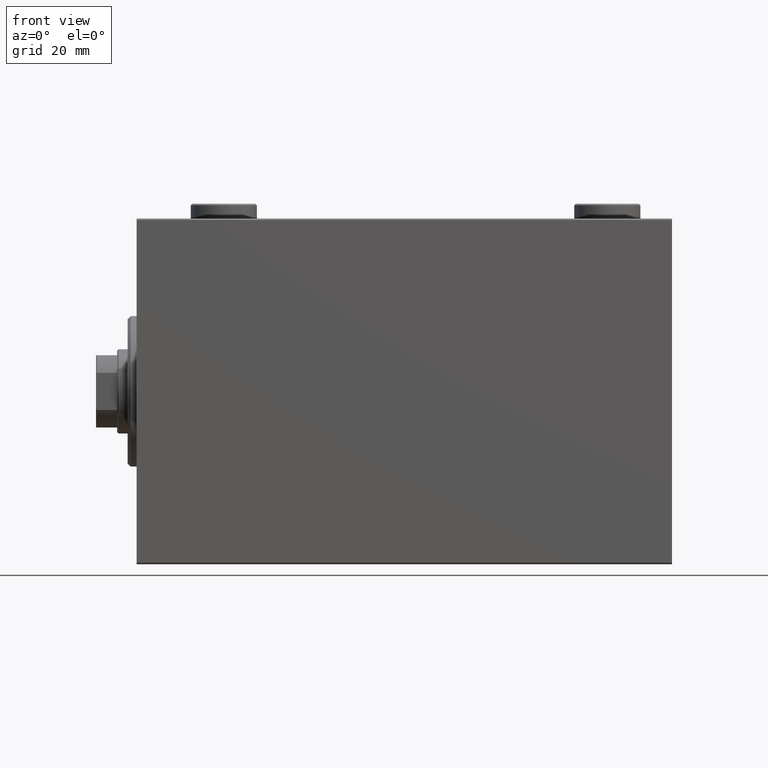
[diagram: clean part render]
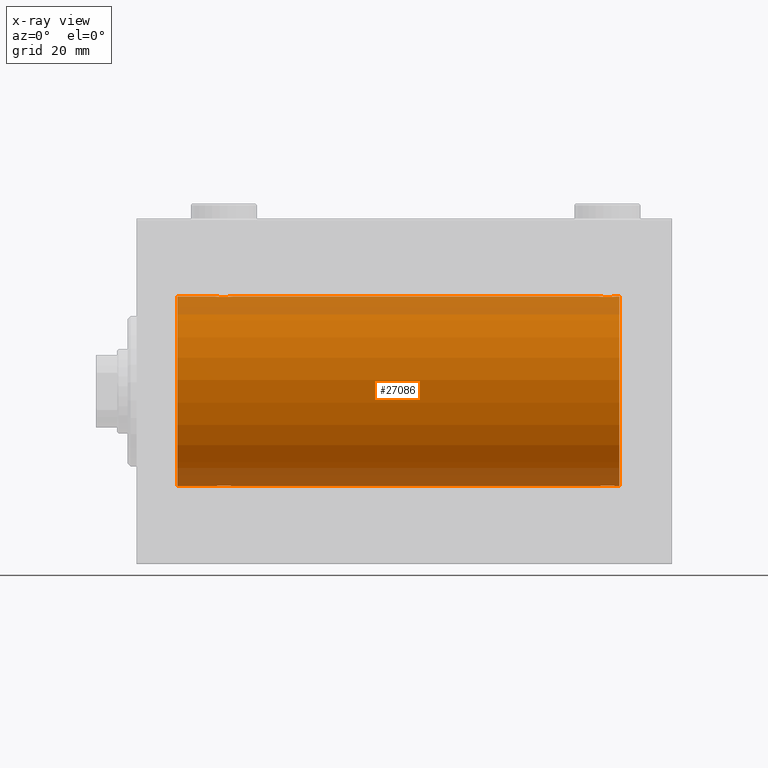
[diagram: x-ray — body ghosted, one internal face saturated and labeled with its STEP entity id]
A machine part, front view, then the same camera in x-ray: the body is ghosted and one INTERNAL B-rep face — a face not visible from any outside direction — is saturated and labeled: STEP entity #27086.
In plain terms, the highlighted cylindrical surface (partial cylindrical patch) has radius 31.5 mm, axis along (-1, -0, -0).
Its self-contained STEP definition (entity closure, byte-faithful):
#402 = CARTESIAN_POINT ( 'NONE',  ( 26.00000000000000355, -4.219962720039639025E-15, -31.50000000000000000 ) ) ;
#1090 = ORIENTED_EDGE ( 'NONE', *, *, #42669, .T. ) ;
#1121 = CARTESIAN_POINT ( 'NONE',  ( 159.1952964235900936, -1.331741824817656683, 31.47235367475393630 ) ) ;
#1234 = CARTESIAN_POINT ( 'NONE',  ( 26.00000000000000355, -2.117263226567934635E-23, 31.50000000000000000 ) ) ;
#1292 = CARTESIAN_POINT ( 'NONE',  ( 160.5000000000000000, 3.857637417314162689E-15, -31.50000000000000000 ) ) ;
#1351 = CARTESIAN_POINT ( 'NONE',  ( 156.1046588899990581, -2.980257240990053624, 31.35872356503797320 ) ) ;
#1556 = CARTESIAN_POINT ( 'NONE',  ( 154.1175312773337396, -1.833765390051043553, -31.44700610425689291 ) ) ;
#1777 = CARTESIAN_POINT ( 'NONE',  ( 157.8323995809917051, -2.695056442718533951, -31.38458855656186230 ) ) ;
#2041 = CARTESIAN_POINT ( 'NONE',  ( 159.4202066295003988, -0.7905881588836107809, 31.49214662150069088 ) ) ;
#2074 = CARTESIAN_POINT ( 'NONE',  ( 31.98101509391517538, -0.3904857149112004322, -31.49817436802766224 ) ) ;
#2308 = CARTESIAN_POINT ( 'NONE',  ( 28.60885452660059869, -2.980809450819697393, -31.35867074198615256 ) ) ;
#2311 = EDGE_LOOP ( 'NONE', ( #14468, #28234, #1090, #2704, #30537, #4821, #25233, #13366, #40650, #8980, #15616, #23655 ) ) ;
#2629 = DIRECTION ( 'NONE',  ( -1.000000000000000000, -0.000000000000000000, -0.000000000000000000 ) ) ;
#2666 = AXIS2_PLACEMENT_3D ( 'NONE', #33991, #9959, #34667 ) ;
#2704 = ORIENTED_EDGE ( 'NONE', *, *, #35328, .T. ) ;
#2879 = CARTESIAN_POINT ( 'NONE',  ( 26.61498557723073333, -1.830470878313877892, 31.44719957596828053 ) ) ;
#3112 = CARTESIAN_POINT ( 'NONE',  ( 28.79953541025904684, -2.999845816735297266, 31.35683219171744796 ) ) ;
#4592 = VERTEX_POINT ( 'NONE', #38613 ) ;
#4616 = CARTESIAN_POINT ( 'NONE',  ( 154.9954371499300407, -2.602826974226394086, 31.39247100434485560 ) ) ;
#4809 = B_SPLINE_CURVE_WITH_KNOTS ( 'NONE', 3,
 ( #29569, #33733, #2074, #12724, #43696, #40675, #16187, #27015, #12031, #44142, #5332, #5791, #15948, #19870, #41132, #29796, #33965, #40214, #2308, #36969, #30259, #12944, #22643, #36737, #5103, #16424, #44383, #43914, #26791, #33500, #30024, #30489 ),
 .UNSPECIFIED., .F., .F.,
 ( 4, 2, 2, 2, 2, 2, 2, 2, 2, 2, 2, 2, 2, 2, 2, 4 ),
 ( 0.009384682587134662163, 0.009971088165454068328, 0.01055749374377347449, 0.01114389932209287892, 0.01173030490041228509, 0.01231671047873168431, 0.01290311605705108181, 0.01348952163537047930, 0.01407592721368987852, 0.01466233279200927775, 0.01524873837032867524, 0.01583514394864807273, 0.01642154952696747369, 0.01700795510528686771, 0.01759436068360626521, 0.01876717184024506366 ),
 .UNSPECIFIED. ) ;
#4821 = ORIENTED_EDGE ( 'NONE', *, *, #27461, .T. ) ;
#4883 = VERTEX_POINT ( 'NONE', #33718 ) ;
#5103 = CARTESIAN_POINT ( 'NONE',  ( 27.01856537126959168, -2.261012035264780451, -31.41905495618428645 ) ) ;
#5271 = CARTESIAN_POINT ( 'NONE',  ( 158.3304369148700630, -2.384935707362425550, -31.40977595730572247 ) ) ;
#5303 = CARTESIAN_POINT ( 'NONE',  ( 159.5000000000000000, 4.699731104275013306E-15, 31.50000000000000000 ) ) ;
#5332 = CARTESIAN_POINT ( 'NONE',  ( 30.83043691487003102, -2.384935707362432211, -31.40977595730573668 ) ) ;
#5525 = CARTESIAN_POINT ( 'NONE',  ( 157.2746909443437175, -2.904836261170101519, 31.36579955910872286 ) ) ;
#5667 = CARTESIAN_POINT ( 'NONE',  ( 26.15339536257501507, -0.9669616078781987367, 31.48567319468626735 ) ) ;
#5725 = CARTESIAN_POINT ( 'NONE',  ( 153.8980785956084674, -1.506272792558325468, -31.46439306106695710 ) ) ;
#5791 = CARTESIAN_POINT ( 'NONE',  ( 30.50456285006998414, -2.602826974226390977, -31.39247100434485560 ) ) ;
#6135 = CARTESIAN_POINT ( 'NONE',  ( 29.96515729810641204, -2.847307171789037028, 31.37114183851420890 ) ) ;
#6151 = LINE ( 'NONE', #21380, #35386 ) ;
#6358 = CARTESIAN_POINT ( 'NONE',  ( 27.66760041900836953, -2.695056442718533507, 31.38458855656185875 ) ) ;
#6383 = DIRECTION ( 'NONE',  ( 0.000000000000000000, 0.000000000000000000, 1.000000000000000000 ) ) ;
#6583 = CARTESIAN_POINT ( 'NONE',  ( 30.32865414687508832, -2.696917666262907520, 31.38442820068731365 ) ) ;
#6652 = CARTESIAN_POINT ( 'NONE',  ( 32.00000000000000000, -3.906065418435112189E-16, 31.50000000000000000 ) ) ;
#6915 = B_SPLINE_CURVE_WITH_KNOTS ( 'NONE', 3,
 ( #14978, #29044, #45564, #13902, #38622, #35145, #43173, #25585, #44077, #40608, #5271, #18884, #1777, #22811, #15427, #9190, #8972, #19574, #44314, #36439, #15888, #43634, #12421, #12190, #29503, #12660, #1556, #5725, #26258, #26494, #26731, #33442 ),
 .UNSPECIFIED., .F., .F.,
 ( 4, 2, 2, 2, 2, 2, 2, 2, 2, 2, 2, 2, 2, 2, 2, 4 ),
 ( 0.009384682587134632673, 0.009971088165454031899, 0.01055749374377343112, 0.01114389932209283035, 0.01173030490041223131, 0.01231671047873163054, 0.01290311605705102976, 0.01348952163537043072, 0.01407592721368982822, 0.01466233279200922918, 0.01524873837032862840, 0.01583514394864802763, 0.01642154952696742512, 0.01700795510528682608, 0.01759436068360622357, 0.01876717184024502549 ),
 .UNSPECIFIED. ) ;
#7403 = AXIS2_PLACEMENT_3D ( 'NONE', #17182, #10487, #24553 ) ;
#8095 = CARTESIAN_POINT ( 'NONE',  ( 154.2390453754387067, -1.981494824113333442, 31.43792153503156683 ) ) ;
#8229 = EDGE_CURVE ( 'NONE', #4883, #30387, #21154, .T. ) ;
#8400 = VERTEX_POINT ( 'NONE', #17762 ) ;
#8534 = CARTESIAN_POINT ( 'NONE',  ( 155.1676004190083233, -2.695056442718522849, 31.38458855656185165 ) ) ;
#8972 = CARTESIAN_POINT ( 'NONE',  ( 156.7004645897410455, -2.999845816735304815, -31.35683219171744796 ) ) ;
#8980 = ORIENTED_EDGE ( 'NONE', *, *, #9841, .F. ) ;
#9001 = CARTESIAN_POINT ( 'NONE',  ( 154.6695630851299654, -2.384935707362434876, 31.40977595730572958 ) ) ;
#9138 = CARTESIAN_POINT ( 'NONE',  ( 28.03055544341478722, -2.845838211243333138, 31.37127560316186603 ) ) ;
#9157 = CARTESIAN_POINT ( 'NONE',  ( 160.5000000000000000, 3.857637417314162689E-15, -31.50000000000000000 ) ) ;
#9190 = CARTESIAN_POINT ( 'NONE',  ( 156.8953411100009703, -2.980257240990060730, -31.35872356503797320 ) ) ;
#9362 = CARTESIAN_POINT ( 'NONE',  ( 31.60192140439154684, -1.506272792558323470, 31.46439306106697131 ) ) ;
#9841 = EDGE_CURVE ( 'NONE', #4883, #39612, #44931, .T. ) ;
#9959 = DIRECTION ( 'NONE',  ( -1.000000000000000000, -0.000000000000000000, -0.000000000000000000 ) ) ;
#10405 = VERTEX_POINT ( 'NONE', #402 ) ;
#10487 = DIRECTION ( 'NONE',  ( -1.000000000000000000, 0.000000000000000000, 0.000000000000000000 ) ) ;
#10883 = VERTEX_POINT ( 'NONE', #41374 ) ;
#11571 = VERTEX_POINT ( 'NONE', #9157 ) ;
#12028 = VERTEX_POINT ( 'NONE', #18978 ) ;
#12031 = CARTESIAN_POINT ( 'NONE',  ( 31.26095462456130747, -1.981494824113323894, -31.43792153503156683 ) ) ;
#12088 = DIRECTION ( 'NONE',  ( -1.000000000000000000, -0.000000000000000000, -0.000000000000000000 ) ) ;
#12190 = CARTESIAN_POINT ( 'NONE',  ( 154.6729577462973566, -2.387531469909784931, -31.40957782495775419 ) ) ;
#12222 = CARTESIAN_POINT ( 'NONE',  ( 157.8286541468751238, -2.696917666262893309, 31.38442820068731365 ) ) ;
#12421 = CARTESIAN_POINT ( 'NONE',  ( 154.9990184370385577, -2.604888532024801417, -31.39229907792057972 ) ) ;
#12455 = CARTESIAN_POINT ( 'NONE',  ( 154.1149855772306978, -1.830470878313871008, 31.44719957596828763 ) ) ;
#12605 = CARTESIAN_POINT ( 'NONE',  ( 27.16956308512997964, -2.384935707362437096, 31.40977595730572958 ) ) ;
#12660 = CARTESIAN_POINT ( 'NONE',  ( 154.2417549809673574, -1.984587626072083388, -31.43772577203671048 ) ) ;
#12724 = CARTESIAN_POINT ( 'NONE',  ( 31.90419450738055218, -0.7775502215293830233, -31.49099686045559565 ) ) ;
#12944 = CARTESIAN_POINT ( 'NONE',  ( 27.67134585312493655, -2.696917666262905300, -31.38442820068732786 ) ) ;
#13029 = VERTEX_POINT ( 'NONE', #32592 ) ;
#13055 = CARTESIAN_POINT ( 'NONE',  ( 26.00000000000001066, -0.1958045626907463088, 31.50000000000000711 ) ) ;
#13366 = ORIENTED_EDGE ( 'NONE', *, *, #29364, .F. ) ;
#13515 = CARTESIAN_POINT ( 'NONE',  ( 26.39582218725271900, -1.502389880413001144, 31.46458023642405166 ) ) ;
#13902 = CARTESIAN_POINT ( 'NONE',  ( 159.4041945073805948, -0.7775502215293820241, -31.49099686045560276 ) ) ;
#14116 = EDGE_CURVE ( 'NONE', #41057, #10405, #4809, .T. ) ;
#14468 = ORIENTED_EDGE ( 'NONE', *, *, #24061, .F. ) ;
#14643 = CARTESIAN_POINT ( 'NONE',  ( 160.5000000000000000, 0.000000000000000000, 31.50000000000000000 ) ) ;
#14957 = LINE ( 'NONE', #1292, #38826 ) ;
#14978 = CARTESIAN_POINT ( 'NONE',  ( 159.5000000000000284, 3.857637396132714903E-15, -31.50000000000000000 ) ) ;
#15399 = DIRECTION ( 'NONE',  ( -1.000000000000000000, -0.000000000000000000, -0.000000000000000000 ) ) ;
#15427 = CARTESIAN_POINT ( 'NONE',  ( 157.2788191264232580, -2.903733559410687004, -31.36590199989303684 ) ) ;
#15616 = ORIENTED_EDGE ( 'NONE', *, *, #8229, .T. ) ;
#15888 = CARTESIAN_POINT ( 'NONE',  ( 155.5348427018936377, -2.847307171789046354, -31.37114183851420179 ) ) ;
#15948 = CARTESIAN_POINT ( 'NONE',  ( 30.33239958099164824, -2.695056442718528178, -31.38458855656186230 ) ) ;
#16153 = CARTESIAN_POINT ( 'NONE',  ( 158.8824687226662888, -1.833765390051030009, 31.44700610425690712 ) ) ;
#16187 = CARTESIAN_POINT ( 'NONE',  ( 31.60417781274729165, -1.502389880412994261, -31.46458023642406587 ) ) ;
#16307 = CARTESIAN_POINT ( 'NONE',  ( 31.38246872266631371, -1.833765390051040223, 31.44700610425690712 ) ) ;
#16424 = CARTESIAN_POINT ( 'NONE',  ( 26.74175498096733961, -1.984587626072072952, -31.43772577203672469 ) ) ;
#16463 = EDGE_CURVE ( 'NONE', #10883, #30387, #38673, .T. ) ;
#16533 = CARTESIAN_POINT ( 'NONE',  ( 32.00000000000000000, -3.906065418435112189E-16, 31.50000000000000000 ) ) ;
#16756 = CARTESIAN_POINT ( 'NONE',  ( 28.60465888999904749, -2.980257240990054513, 31.35872356503797320 ) ) ;
#17182 = CARTESIAN_POINT ( 'NONE',  ( 13.50000000000001243, 0.000000000000000000, 0.000000000000000000 ) ) ;
#17762 = CARTESIAN_POINT ( 'NONE',  ( 13.50000000000001243, 0.000000000000000000, 31.50000000000000000 ) ) ;
#18694 = CARTESIAN_POINT ( 'NONE',  ( 153.8958221872527190, -1.502389880412993595, 31.46458023642405877 ) ) ;
#18865 = VERTEX_POINT ( 'NONE', #1234 ) ;
#18884 = CARTESIAN_POINT ( 'NONE',  ( 158.0045628500700445, -2.602826974226389645, -31.39247100434486271 ) ) ;
#18978 = CARTESIAN_POINT ( 'NONE',  ( 159.5000000000000284, 3.857637396132714903E-15, -31.50000000000000000 ) ) ;
#19155 = CARTESIAN_POINT ( 'NONE',  ( 156.2995354102590682, -2.999845816735293713, 31.35683219171744796 ) ) ;
#19574 = CARTESIAN_POINT ( 'NONE',  ( 156.3041770556056065, -3.000152387858495029, -31.35680286115499626 ) ) ;
#19606 = CARTESIAN_POINT ( 'NONE',  ( 153.5000000000000284, -0.1958045626907475856, 31.50000000000000000 ) ) ;
#19754 = CARTESIAN_POINT ( 'NONE',  ( 30.82704225370267892, -2.387531469909770276, 31.40957782495776129 ) ) ;
#19870 = CARTESIAN_POINT ( 'NONE',  ( 29.96944455658522699, -2.845838211243328697, -31.37127560316187314 ) ) ;
#21154 = B_SPLINE_CURVE_WITH_KNOTS ( 'NONE', 3,
 ( #44109, #19606, #23069, #36703, #39731, #37159, #18694, #12455, #8095, #33007, #9001, #4616, #8534, #22166, #40640, #1351, #19155, #32782, #22611, #5525, #22386, #12222, #26525, #36471, #33698, #30228, #16153, #36254, #1121, #2041, #29990, #5303 ),
 .UNSPECIFIED., .F., .F.,
 ( 4, 2, 2, 2, 2, 2, 2, 2, 2, 2, 2, 2, 2, 2, 2, 4 ),
 ( 0.009384682587134643081, 0.009971088165454042307, 0.01055749374377344327, 0.01114389932209284423, 0.01173030490041224345, 0.01231671047873164268, 0.01290311605705104364, 0.01348952163537044460, 0.01407592721368984383, 0.01466233279200924305, 0.01524873837032864402, 0.01583514394864804498, 0.01642154952696744594, 0.01700795510528684690, 0.01759436068360624439, 0.01876717184024504284 ),
 .UNSPECIFIED. ) ;
#21380 = CARTESIAN_POINT ( 'NONE',  ( 160.5000000000000000, 3.857637417314162689E-15, -31.50000000000000000 ) ) ;
#22166 = CARTESIAN_POINT ( 'NONE',  ( 155.5305554434147837, -2.845838211243326032, 31.37127560316188024 ) ) ;
#22386 = CARTESIAN_POINT ( 'NONE',  ( 157.4651572981064476, -2.847307171789025926, 31.37114183851420179 ) ) ;
#22611 = CARTESIAN_POINT ( 'NONE',  ( 156.8911454733994333, -2.980809450819698281, 31.35867074198615967 ) ) ;
#22643 = CARTESIAN_POINT ( 'NONE',  ( 27.49901843703855775, -2.604888532024790759, -31.39229907792058683 ) ) ;
#22811 = CARTESIAN_POINT ( 'NONE',  ( 157.4694445565852732, -2.845838211243336691, -31.37127560316186603 ) ) ;
#22938 = CARTESIAN_POINT ( 'NONE',  ( 160.5000000000000000, 0.000000000000000000, 31.50000000000000000 ) ) ;
#23069 = CARTESIAN_POINT ( 'NONE',  ( 153.5189849060848246, -0.3904857149112037629, 31.49817436802766935 ) ) ;
#23655 = ORIENTED_EDGE ( 'NONE', *, *, #16463, .F. ) ;
#23676 = CARTESIAN_POINT ( 'NONE',  ( 30.98143462873041898, -2.261012035264782227, 31.41905495618429356 ) ) ;
#23899 = CARTESIAN_POINT ( 'NONE',  ( 26.00000000000000355, -2.117263226567934635E-23, 31.50000000000000000 ) ) ;
#23927 = CARTESIAN_POINT ( 'NONE',  ( 160.5000000000000000, 0.000000000000000000, 0.000000000000000000 ) ) ;
#24061 = EDGE_CURVE ( 'NONE', #11571, #10883, #34302, .T. ) ;
#24384 = DIRECTION ( 'NONE',  ( -1.000000000000000000, 0.000000000000000000, 0.000000000000000000 ) ) ;
#24553 = DIRECTION ( 'NONE',  ( 0.000000000000000000, 0.000000000000000000, 1.000000000000000000 ) ) ;
#25233 = ORIENTED_EDGE ( 'NONE', *, *, #41329, .T. ) ;
#25585 = CARTESIAN_POINT ( 'NONE',  ( 158.8850144227693022, -1.830470878313878336, -31.44719957596828763 ) ) ;
#25620 = CARTESIAN_POINT ( 'NONE',  ( 160.5000000000000000, 3.857637417314162689E-15, -31.50000000000000000 ) ) ;
#26258 = CARTESIAN_POINT ( 'NONE',  ( 153.8047035764099917, -1.331741824817675335, -31.47235367475394341 ) ) ;
#26292 = VECTOR ( 'NONE', #12088, 1000.000000000000000 ) ;
#26494 = CARTESIAN_POINT ( 'NONE',  ( 153.5797933704996012, -0.7905881588836281004, -31.49214662150069088 ) ) ;
#26525 = CARTESIAN_POINT ( 'NONE',  ( 158.0009815629614991, -2.604888532024791203, 31.39229907792058683 ) ) ;
#26731 = CARTESIAN_POINT ( 'NONE',  ( 153.5000000000000284, -0.3965830985361946115, -31.50000000000000711 ) ) ;
#26791 = CARTESIAN_POINT ( 'NONE',  ( 26.30470357640990642, -1.331741824817663344, -31.47235367475394341 ) ) ;
#26902 = CARTESIAN_POINT ( 'NONE',  ( 26.09580549261944427, -0.7775502215293862429, 31.49099686045558144 ) ) ;
#27015 = CARTESIAN_POINT ( 'NONE',  ( 31.38501442276926667, -1.830470878313871008, -31.44719957596828763 ) ) ;
#27086 = ADVANCED_FACE ( 'NONE', ( #37906 ), #41613, .F. ) ;
#27365 = CARTESIAN_POINT ( 'NONE',  ( 29.39114547339941552, -2.980809450819701834, 31.35867074198615967 ) ) ;
#27461 = EDGE_CURVE ( 'NONE', #10405, #13029, #14957, .T. ) ;
#27583 = CARTESIAN_POINT ( 'NONE',  ( 29.19582294439440417, -3.000152387858486147, 31.35680286115499626 ) ) ;
#28234 = ORIENTED_EDGE ( 'NONE', *, *, #40283, .T. ) ;
#28739 = CARTESIAN_POINT ( 'NONE',  ( 159.5000000000000000, 4.699731104275013306E-15, 31.50000000000000000 ) ) ;
#29044 = CARTESIAN_POINT ( 'NONE',  ( 159.5000000000000284, -0.1958045626907440329, -31.50000000000000000 ) ) ;
#29364 = EDGE_CURVE ( 'NONE', #18865, #8400, #44449, .T. ) ;
#29503 = CARTESIAN_POINT ( 'NONE',  ( 154.5185653712696308, -2.261012035264789777, -31.41905495618427224 ) ) ;
#29569 = CARTESIAN_POINT ( 'NONE',  ( 32.00000000000000000, 3.857637396137448068E-15, -31.50000000000000000 ) ) ;
#29796 = CARTESIAN_POINT ( 'NONE',  ( 29.39534111000096672, -2.980257240990050516, -31.35872356503798741 ) ) ;
#29990 = CARTESIAN_POINT ( 'NONE',  ( 159.4999999999999432, -0.3965830985361761263, 31.50000000000000000 ) ) ;
#30024 = CARTESIAN_POINT ( 'NONE',  ( 26.00000000000001066, -0.3965830985361785688, -31.50000000000000711 ) ) ;
#30220 = CIRCLE ( 'NONE', #7403, 31.50000000000000000 ) ;
#30228 = CARTESIAN_POINT ( 'NONE',  ( 158.7582450190326426, -1.984587626072069844, 31.43772577203671759 ) ) ;
#30259 = CARTESIAN_POINT ( 'NONE',  ( 28.03484270189360217, -2.847307171789032143, -31.37114183851420179 ) ) ;
#30354 = VECTOR ( 'NONE', #42158, 1000.000000000000000 ) ;
#30387 = VERTEX_POINT ( 'NONE', #28739 ) ;
#30489 = CARTESIAN_POINT ( 'NONE',  ( 26.00000000000000355, -4.219962720039639025E-15, -31.50000000000000000 ) ) ;
#30537 = ORIENTED_EDGE ( 'NONE', *, *, #14116, .T. ) ;
#31068 = CARTESIAN_POINT ( 'NONE',  ( 26.73904537543869608, -1.981494824113328779, 31.43792153503155973 ) ) ;
#32284 = VECTOR ( 'NONE', #42534, 1000.000000000000000 ) ;
#32592 = CARTESIAN_POINT ( 'NONE',  ( 13.50000000000001243, 3.857637417314162689E-15, -31.50000000000000000 ) ) ;
#32782 = CARTESIAN_POINT ( 'NONE',  ( 156.6958229443944219, -3.000152387858483927, 31.35680286115499626 ) ) ;
#33007 = CARTESIAN_POINT ( 'NONE',  ( 154.5153964007533887, -2.258226318633788754, 31.41925597582826413 ) ) ;
#33442 = CARTESIAN_POINT ( 'NONE',  ( 153.5000000000000284, -2.045720367747829303E-14, -31.50000000000000000 ) ) ;
#33500 = CARTESIAN_POINT ( 'NONE',  ( 26.07979337049960122, -0.7905881588836181084, -31.49214662150069799 ) ) ;
#33592 = CARTESIAN_POINT ( 'NONE',  ( 160.5000000000000000, 0.000000000000000000, 31.50000000000000000 ) ) ;
#33698 = CARTESIAN_POINT ( 'NONE',  ( 158.4814346287303977, -2.261012035264779119, 31.41905495618428645 ) ) ;
#33718 = CARTESIAN_POINT ( 'NONE',  ( 153.5000000000000000, -2.118130973563677748E-23, 31.50000000000000000 ) ) ;
#33733 = CARTESIAN_POINT ( 'NONE',  ( 32.00000000000001421, -0.1958045626907420345, -31.50000000000000711 ) ) ;
#33847 = CARTESIAN_POINT ( 'NONE',  ( 31.25824501903266039, -1.984587626072074285, 31.43772577203672469 ) ) ;
#33965 = CARTESIAN_POINT ( 'NONE',  ( 29.20046458974096026, -2.999845816735291493, -31.35683219171744796 ) ) ;
#33991 = CARTESIAN_POINT ( 'NONE',  ( 160.5000000000000000, 0.000000000000000000, 0.000000000000000000 ) ) ;
#33996 = EDGE_CURVE ( 'NONE', #18865, #39612, #40940, .T. ) ;
#34080 = CARTESIAN_POINT ( 'NONE',  ( 32.00000000000001421, -0.3965830985361748495, 31.50000000000001421 ) ) ;
#34302 = CIRCLE ( 'NONE', #37258, 31.50000000000000000 ) ;
#34532 = CARTESIAN_POINT ( 'NONE',  ( 26.01898490608483527, -0.3904857149112033743, 31.49817436802766935 ) ) ;
#34667 = DIRECTION ( 'NONE',  ( 0.000000000000000000, 0.000000000000000000, 1.000000000000000000 ) ) ;
#34762 = CARTESIAN_POINT ( 'NONE',  ( 30.50098156296146712, -2.604888532024788983, 31.39229907792058683 ) ) ;
#35145 = CARTESIAN_POINT ( 'NONE',  ( 159.1971423883670411, -1.328004386210302368, -31.47251238182141719 ) ) ;
#35328 = EDGE_CURVE ( 'NONE', #4592, #41057, #35592, .T. ) ;
#35386 = VECTOR ( 'NONE', #43534, 1000.000000000000000 ) ;
#35592 = LINE ( 'NONE', #25620, #32284 ) ;
#36254 = CARTESIAN_POINT ( 'NONE',  ( 159.1019214043915326, -1.506272792558311702, 31.46439306106696421 ) ) ;
#36439 = CARTESIAN_POINT ( 'NONE',  ( 155.7253090556563109, -2.904836261170120171, -31.36579955910872286 ) ) ;
#36471 = CARTESIAN_POINT ( 'NONE',  ( 158.3270422537027002, -2.387531469909772941, 31.40957782495776840 ) ) ;
#36703 = CARTESIAN_POINT ( 'NONE',  ( 153.5958054926194620, -0.7775502215293850217, 31.49099686045560276 ) ) ;
#36737 = CARTESIAN_POINT ( 'NONE',  ( 27.17295774629732819, -2.387531469909772941, -31.40957782495775419 ) ) ;
#36969 = CARTESIAN_POINT ( 'NONE',  ( 28.22530905565627179, -2.904836261170101519, -31.36579955910872286 ) ) ;
#37159 = CARTESIAN_POINT ( 'NONE',  ( 153.8028576116330157, -1.328004386210311472, 31.47251238182141719 ) ) ;
#37258 = AXIS2_PLACEMENT_3D ( 'NONE', #23927, #24384, #6383 ) ;
#37539 = CARTESIAN_POINT ( 'NONE',  ( 31.92020662950040943, -0.7905881588836116691, 31.49214662150068378 ) ) ;
#37906 = FACE_OUTER_BOUND ( 'NONE', #2311, .T. ) ;
#37994 = CARTESIAN_POINT ( 'NONE',  ( 27.49543714993000876, -2.602826974226395862, 31.39247100434485560 ) ) ;
#38230 = CARTESIAN_POINT ( 'NONE',  ( 26.30285761163300151, -1.328004386210305698, 31.47251238182140298 ) ) ;
#38613 = CARTESIAN_POINT ( 'NONE',  ( 153.5000000000000284, -2.045720367747829303E-14, -31.50000000000000000 ) ) ;
#38622 = CARTESIAN_POINT ( 'NONE',  ( 159.3466046374250311, -0.9669616078781947399, -31.48567319468627446 ) ) ;
#38673 = LINE ( 'NONE', #14643, #30354 ) ;
#38826 = VECTOR ( 'NONE', #15399, 1000.000000000000000 ) ;
#39612 = VERTEX_POINT ( 'NONE', #6652 ) ;
#39731 = CARTESIAN_POINT ( 'NONE',  ( 153.6533953625750257, -0.9669616078782046209, 31.48567319468627801 ) ) ;
#39794 = VECTOR ( 'NONE', #2629, 1000.000000000000000 ) ;
#40214 = CARTESIAN_POINT ( 'NONE',  ( 28.80417705560560648, -3.000152387858482150, -31.35680286115500337 ) ) ;
#40283 = EDGE_CURVE ( 'NONE', #11571, #12028, #6151, .T. ) ;
#40608 = CARTESIAN_POINT ( 'NONE',  ( 158.4846035992466682, -2.258226318633799412, -31.41925597582826413 ) ) ;
#40640 = CARTESIAN_POINT ( 'NONE',  ( 155.7211808735768273, -2.903733559410683895, 31.36590199989304395 ) ) ;
#40650 = ORIENTED_EDGE ( 'NONE', *, *, #33996, .T. ) ;
#40675 = CARTESIAN_POINT ( 'NONE',  ( 31.69714238836700915, -1.328004386210300591, -31.47251238182141009 ) ) ;
#40788 = CARTESIAN_POINT ( 'NONE',  ( 27.01539640075335669, -2.258226318633785201, 31.41925597582825702 ) ) ;
#40940 = B_SPLINE_CURVE_WITH_KNOTS ( 'NONE', 3,
 ( #23899, #13055, #34532, #26902, #5667, #38230, #13515, #2879, #31068, #40788, #12605, #37994, #6358, #9138, #41012, #16756, #3112, #27583, #27365, #41699, #6135, #6583, #34762, #19754, #23676, #33847, #16307, #9362, #44715, #37539, #34080, #16533 ),
 .UNSPECIFIED., .F., .F.,
 ( 4, 2, 2, 2, 2, 2, 2, 2, 2, 2, 2, 2, 2, 2, 2, 4 ),
 ( 0.009384682587134639611, 0.009971088165454038837, 0.01055749374377343980, 0.01114389932209284076, 0.01173030490041223999, 0.01231671047873163921, 0.01290311605705104017, 0.01348952163537044113, 0.01407592721368984036, 0.01466233279200923958, 0.01524873837032864055, 0.01583514394864804151, 0.01642154952696744247, 0.01700795510528683996, 0.01759436068360624092, 0.01876717184024503243 ),
 .UNSPECIFIED. ) ;
#41012 = CARTESIAN_POINT ( 'NONE',  ( 28.22118087357680238, -2.903733559410683895, 31.36590199989303684 ) ) ;
#41057 = VERTEX_POINT ( 'NONE', #43877 ) ;
#41132 = CARTESIAN_POINT ( 'NONE',  ( 29.77881912642320827, -2.903733559410676790, -31.36590199989303684 ) ) ;
#41329 = EDGE_CURVE ( 'NONE', #13029, #8400, #30220, .T. ) ;
#41374 = CARTESIAN_POINT ( 'NONE',  ( 160.5000000000000000, 0.000000000000000000, 31.50000000000000000 ) ) ;
#41613 = CYLINDRICAL_SURFACE ( 'NONE', #2666, 31.50000000000000000 ) ;
#41699 = CARTESIAN_POINT ( 'NONE',  ( 29.77469094434372821, -2.904836261170106404, 31.36579955910873707 ) ) ;
#42158 = DIRECTION ( 'NONE',  ( -1.000000000000000000, -0.000000000000000000, -0.000000000000000000 ) ) ;
#42534 = DIRECTION ( 'NONE',  ( -1.000000000000000000, -0.000000000000000000, -0.000000000000000000 ) ) ;
#42669 = EDGE_CURVE ( 'NONE', #12028, #4592, #6915, .T. ) ;
#43173 = CARTESIAN_POINT ( 'NONE',  ( 159.1041778127473663, -1.502389880412999146, -31.46458023642405877 ) ) ;
#43534 = DIRECTION ( 'NONE',  ( -1.000000000000000000, -0.000000000000000000, -0.000000000000000000 ) ) ;
#43634 = CARTESIAN_POINT ( 'NONE',  ( 155.1713458531249614, -2.696917666262917290, -31.38442820068731365 ) ) ;
#43696 = CARTESIAN_POINT ( 'NONE',  ( 31.84660463742499559, -0.9669616078781936297, -31.48567319468626735 ) ) ;
#43877 = CARTESIAN_POINT ( 'NONE',  ( 32.00000000000000000, 3.857637396137448068E-15, -31.50000000000000000 ) ) ;
#43914 = CARTESIAN_POINT ( 'NONE',  ( 26.39807859560847803, -1.506272792558329021, -31.46439306106696421 ) ) ;
#44077 = CARTESIAN_POINT ( 'NONE',  ( 158.7609546245613217, -1.981494824113344322, -31.43792153503157394 ) ) ;
#44109 = CARTESIAN_POINT ( 'NONE',  ( 153.5000000000000000, -2.118130973563677748E-23, 31.50000000000000000 ) ) ;
#44142 = CARTESIAN_POINT ( 'NONE',  ( 30.98460359924664331, -2.258226318633780316, -31.41925597582826413 ) ) ;
#44314 = CARTESIAN_POINT ( 'NONE',  ( 156.1088545266006520, -2.980809450819712936, -31.35867074198615967 ) ) ;
#44383 = CARTESIAN_POINT ( 'NONE',  ( 26.61753127733370050, -1.833765390051043775, -31.44700610425689291 ) ) ;
#44449 = LINE ( 'NONE', #22938, #26292 ) ;
#44715 = CARTESIAN_POINT ( 'NONE',  ( 31.69529642359010424, -1.331741824817659348, 31.47235367475393630 ) ) ;
#44931 = LINE ( 'NONE', #33592, #39794 ) ;
#45564 = CARTESIAN_POINT ( 'NONE',  ( 159.4810150939152322, -0.3904857149112007653, -31.49817436802767290 ) ) ;